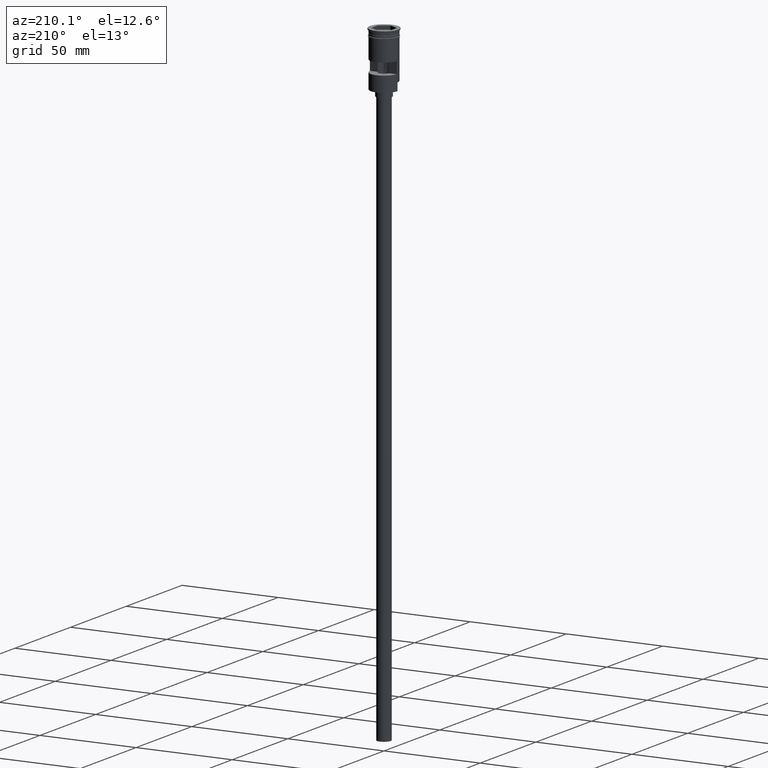
[diagram: clean part render]
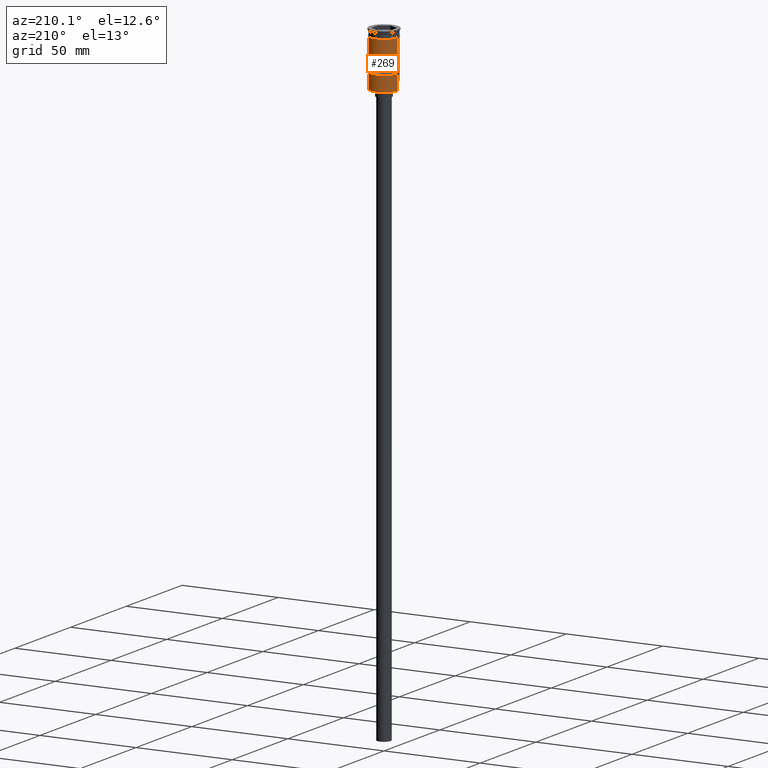
[diagram: same view with one face highlighted and labeled with its STEP entity id]
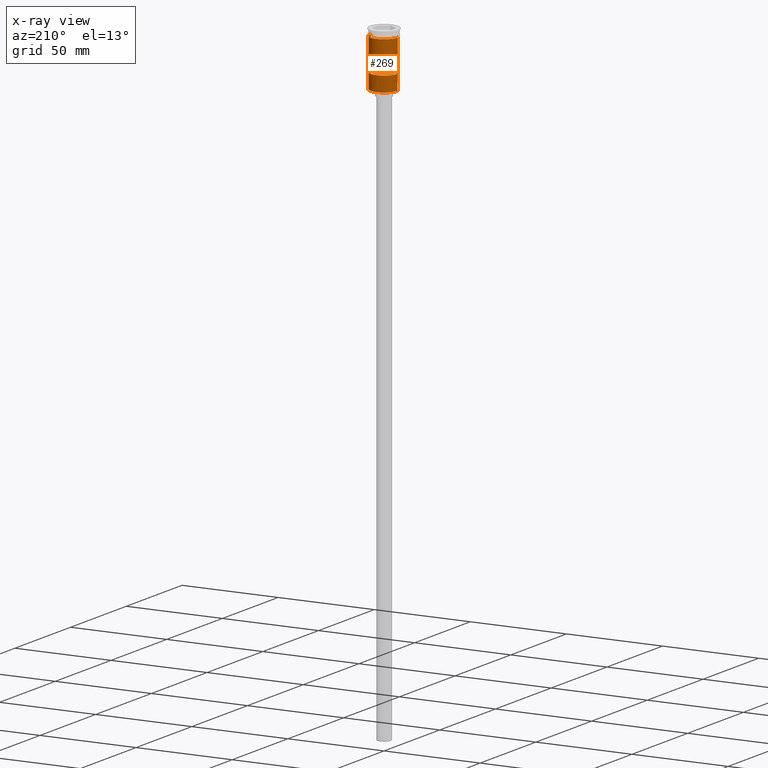
[diagram: x-ray of the same camera — body ghosted, the highlighted face saturated]
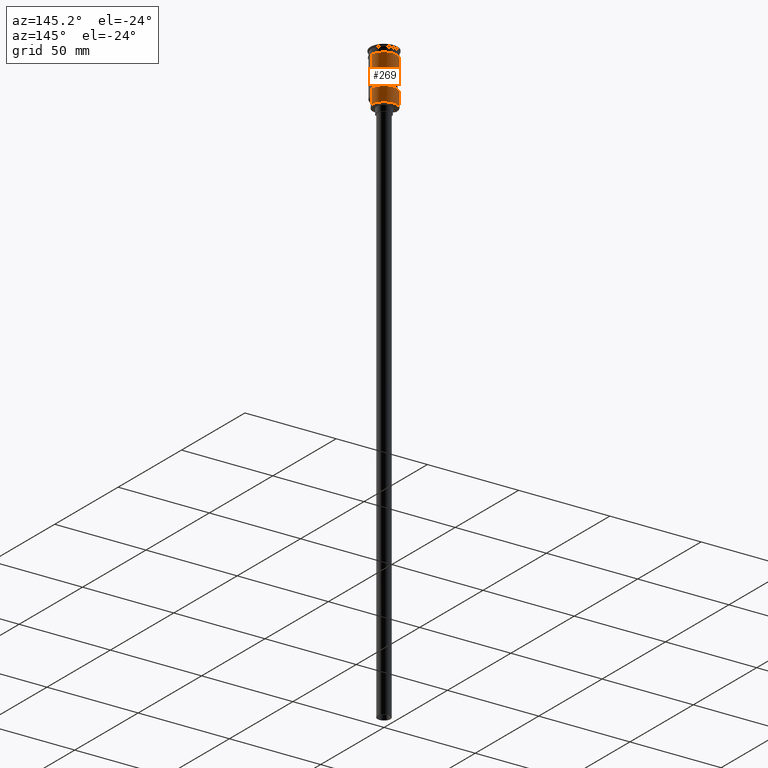
[diagram: same view with one face highlighted and labeled with its STEP entity id]
A machine part, auxiliary view. The second image highlights one B-rep face of the part: STEP entity #269.
The next image is the same camera in x-ray: the body ghosted, the highlighted face saturated — about 0% of this face is hidden behind the body in this view.
A second angle (auxiliary view) of the same face is appended — the face is thin or edge-on in the first view.
In plain terms, the highlighted cylindrical surface (edge-blend (fillet) strip) has radius 7 mm, axis along (-0, -0, 1).
Its self-contained STEP definition (entity closure, byte-faithful):
#64 = CARTESIAN_POINT ( 'NONE',  ( -6.999999999999993783, 0.000000000000000000, -28.50000000000000000 ) ) ;
#70 = LINE ( 'NONE', #64, #266 ) ;
#101 = CARTESIAN_POINT ( 'NONE',  ( -6.974238309665074631, 0.5999999999999999778, -14.50000000000000178 ) ) ;
#135 = DIRECTION ( 'NONE',  ( 0.000000000000000000, 0.000000000000000000, 1.000000000000000000 ) ) ;
#234 = LINE ( 'NONE', #488, #1052 ) ;
#266 = VECTOR ( 'NONE', #449, 1000.000000000000000 ) ;
#269 = ADVANCED_FACE ( 'NONE', ( #421, #926 ), #1416, .T. ) ;
#306 = CARTESIAN_POINT ( 'NONE',  ( 0.000000000000000000, 0.000000000000000000, 0.000000000000000000 ) ) ;
#307 = VERTEX_POINT ( 'NONE', #101 ) ;
#320 = VERTEX_POINT ( 'NONE', #988 ) ;
#363 = DIRECTION ( 'NONE',  ( -0.000000000000000000, -0.000000000000000000, 1.000000000000000000 ) ) ;
#376 = EDGE_LOOP ( 'NONE', ( #1329, #622, #530, #654 ) ) ;
#420 = AXIS2_PLACEMENT_3D ( 'NONE', #1244, #715, #1114 ) ;
#421 = FACE_BOUND ( 'NONE', #376, .T. ) ;
#432 = CARTESIAN_POINT ( 'NONE',  ( 6.999999999999996447, 8.572527594031468259E-16, -24.30000000000006466 ) ) ;
#449 = DIRECTION ( 'NONE',  ( -0.000000000000000000, -0.000000000000000000, 1.000000000000000000 ) ) ;
#487 = ORIENTED_EDGE ( 'NONE', *, *, #1203, .F. ) ;
#488 = CARTESIAN_POINT ( 'NONE',  ( -6.974238309665074631, 0.5999999999999999778, 0.000000000000000000 ) ) ;
#492 = CARTESIAN_POINT ( 'NONE',  ( 0.000000000000000000, 0.000000000000000000, -3.799999999999998490 ) ) ;
#509 = EDGE_CURVE ( 'NONE', #1199, #955, #1354, .T. ) ;
#517 = CARTESIAN_POINT ( 'NONE',  ( 0.000000000000000000, 0.000000000000000000, -28.30000000000002203 ) ) ;
#530 = ORIENTED_EDGE ( 'NONE', *, *, #887, .F. ) ;
#555 = VECTOR ( 'NONE', #1226, 1000.000000000000000 ) ;
#582 = DIRECTION ( 'NONE',  ( 1.000000000000000000, 0.000000000000000000, 0.000000000000000000 ) ) ;
#585 = VERTEX_POINT ( 'NONE', #1431 ) ;
#622 = ORIENTED_EDGE ( 'NONE', *, *, #837, .F. ) ;
#647 = CARTESIAN_POINT ( 'NONE',  ( 6.974238309665074631, 0.5999999999999999778, 0.000000000000000000 ) ) ;
#654 = ORIENTED_EDGE ( 'NONE', *, *, #1197, .F. ) ;
#655 = DIRECTION ( 'NONE',  ( 0.000000000000000000, 0.000000000000000000, -1.000000000000000000 ) ) ;
#694 = CARTESIAN_POINT ( 'NONE',  ( 6.999999999999999112, 0.000000000000000000, -3.799999999999998490 ) ) ;
#712 = VECTOR ( 'NONE', #655, 1000.000000000000000 ) ;
#714 = VECTOR ( 'NONE', #1098, 1000.000000000000000 ) ;
#715 = DIRECTION ( 'NONE',  ( -0.000000000000000000, -5.421010862427526114E-16, 1.000000000000000000 ) ) ;
#722 = CARTESIAN_POINT ( 'NONE',  ( 6.974238309665075519, 0.5999999999999999778, -20.50000000000000000 ) ) ;
#752 = CARTESIAN_POINT ( 'NONE',  ( 6.999999999999996447, 0.000000000000000000, 0.000000000000000000 ) ) ;
#769 = EDGE_CURVE ( 'NONE', #954, #1096, #1218, .T. ) ;
#778 = DIRECTION ( 'NONE',  ( -0.000000000000000000, -0.000000000000000000, 1.000000000000000000 ) ) ;
#784 = LINE ( 'NONE', #1038, #1406 ) ;
#790 = CARTESIAN_POINT ( 'NONE',  ( -6.999999999999993783, 0.000000000000000000, -24.30000000000006466 ) ) ;
#809 = DIRECTION ( 'NONE',  ( -0.000000000000000000, -0.000000000000000000, 1.000000000000000000 ) ) ;
#817 = EDGE_CURVE ( 'NONE', #1246, #585, #784, .T. ) ;
#837 = EDGE_CURVE ( 'NONE', #320, #1199, #1372, .T. ) ;
#841 = ORIENTED_EDGE ( 'NONE', *, *, #1130, .F. ) ;
#843 = DIRECTION ( 'NONE',  ( -0.000000000000000000, -0.000000000000000000, 1.000000000000000000 ) ) ;
#887 = EDGE_CURVE ( 'NONE', #307, #320, #1134, .T. ) ;
#920 = AXIS2_PLACEMENT_3D ( 'NONE', #492, #363, #1364 ) ;
#921 = AXIS2_PLACEMENT_3D ( 'NONE', #306, #809, #582 ) ;
#926 = FACE_OUTER_BOUND ( 'NONE', #1337, .T. ) ;
#932 = VERTEX_POINT ( 'NONE', #432 ) ;
#948 = CARTESIAN_POINT ( 'NONE',  ( -6.999999999999993783, 0.000000000000000000, -28.30000000000002203 ) ) ;
#954 = VERTEX_POINT ( 'NONE', #1172 ) ;
#955 = VERTEX_POINT ( 'NONE', #1027 ) ;
#988 = CARTESIAN_POINT ( 'NONE',  ( 6.974238309665075519, 0.5999999999999999778, -14.50000000000000178 ) ) ;
#994 = LINE ( 'NONE', #1470, #555 ) ;
#1020 = CARTESIAN_POINT ( 'NONE',  ( 0.000000000000000000, 0.000000000000000000, -14.50000000000000178 ) ) ;
#1027 = CARTESIAN_POINT ( 'NONE',  ( -6.974238309665074631, 0.5999999999999999778, -20.50000000000000000 ) ) ;
#1038 = CARTESIAN_POINT ( 'NONE',  ( -6.999999999999996447, 8.572527594031468259E-16, 0.000000000000000000 ) ) ;
#1052 = VECTOR ( 'NONE', #843, 1000.000000000000000 ) ;
#1064 = ORIENTED_EDGE ( 'NONE', *, *, #1450, .T. ) ;
#1074 = ORIENTED_EDGE ( 'NONE', *, *, #769, .T. ) ;
#1096 = VERTEX_POINT ( 'NONE', #948 ) ;
#1098 = DIRECTION ( 'NONE',  ( -0.000000000000000000, -0.000000000000000000, 1.000000000000000000 ) ) ;
#1105 = LINE ( 'NONE', #752, #714 ) ;
#1114 = DIRECTION ( 'NONE',  ( 0.000000000000000000, 1.000000000000000000, 4.956352788505165240E-16 ) ) ;
#1130 = EDGE_CURVE ( 'NONE', #932, #1417, #1105, .T. ) ;
#1134 = CIRCLE ( 'NONE', #1187, 6.999999999999996447 ) ;
#1172 = CARTESIAN_POINT ( 'NONE',  ( 6.999999999999993783, 8.572527594031465301E-16, -28.30000000000002203 ) ) ;
#1179 = EDGE_CURVE ( 'NONE', #1417, #585, #1408, .T. ) ;
#1187 = AXIS2_PLACEMENT_3D ( 'NONE', #1020, #1506, #1489 ) ;
#1197 = EDGE_CURVE ( 'NONE', #955, #307, #234, .T. ) ;
#1199 = VERTEX_POINT ( 'NONE', #722 ) ;
#1203 = EDGE_CURVE ( 'NONE', #954, #932, #994, .T. ) ;
#1218 = CIRCLE ( 'NONE', #1423, 6.999999999999996447 ) ;
#1226 = DIRECTION ( 'NONE',  ( -0.000000000000000000, -0.000000000000000000, 1.000000000000000000 ) ) ;
#1244 = CARTESIAN_POINT ( 'NONE',  ( 0.000000000000000000, 0.000000000000000000, -20.50000000000000000 ) ) ;
#1246 = VERTEX_POINT ( 'NONE', #790 ) ;
#1279 = DIRECTION ( 'NONE',  ( -1.000000000000000000, 0.000000000000000000, 0.000000000000000000 ) ) ;
#1329 = ORIENTED_EDGE ( 'NONE', *, *, #509, .F. ) ;
#1337 = EDGE_LOOP ( 'NONE', ( #1064, #1500, #1555, #841, #487, #1074 ) ) ;
#1354 = CIRCLE ( 'NONE', #420, 6.999999999999996447 ) ;
#1364 = DIRECTION ( 'NONE',  ( 1.000000000000000000, 0.000000000000000000, 0.000000000000000000 ) ) ;
#1372 = LINE ( 'NONE', #647, #712 ) ;
#1406 = VECTOR ( 'NONE', #778, 1000.000000000000000 ) ;
#1408 = CIRCLE ( 'NONE', #920, 6.999999999999999112 ) ;
#1416 = CYLINDRICAL_SURFACE ( 'NONE', #921, 6.999999999999996447 ) ;
#1417 = VERTEX_POINT ( 'NONE', #694 ) ;
#1423 = AXIS2_PLACEMENT_3D ( 'NONE', #517, #135, #1279 ) ;
#1431 = CARTESIAN_POINT ( 'NONE',  ( -7.000000000000000000, 8.572527594031472204E-16, -3.799999999999998490 ) ) ;
#1450 = EDGE_CURVE ( 'NONE', #1096, #1246, #70, .T. ) ;
#1470 = CARTESIAN_POINT ( 'NONE',  ( 6.999999999999993783, 8.572527594031465301E-16, -28.50000000000000000 ) ) ;
#1489 = DIRECTION ( 'NONE',  ( 0.000000000000000000, -1.000000000000000000, 2.478176394252582620E-16 ) ) ;
#1500 = ORIENTED_EDGE ( 'NONE', *, *, #817, .T. ) ;
#1506 = DIRECTION ( 'NONE',  ( -0.000000000000000000, -2.710505431213763057E-16, -1.000000000000000000 ) ) ;
#1555 = ORIENTED_EDGE ( 'NONE', *, *, #1179, .F. ) ;